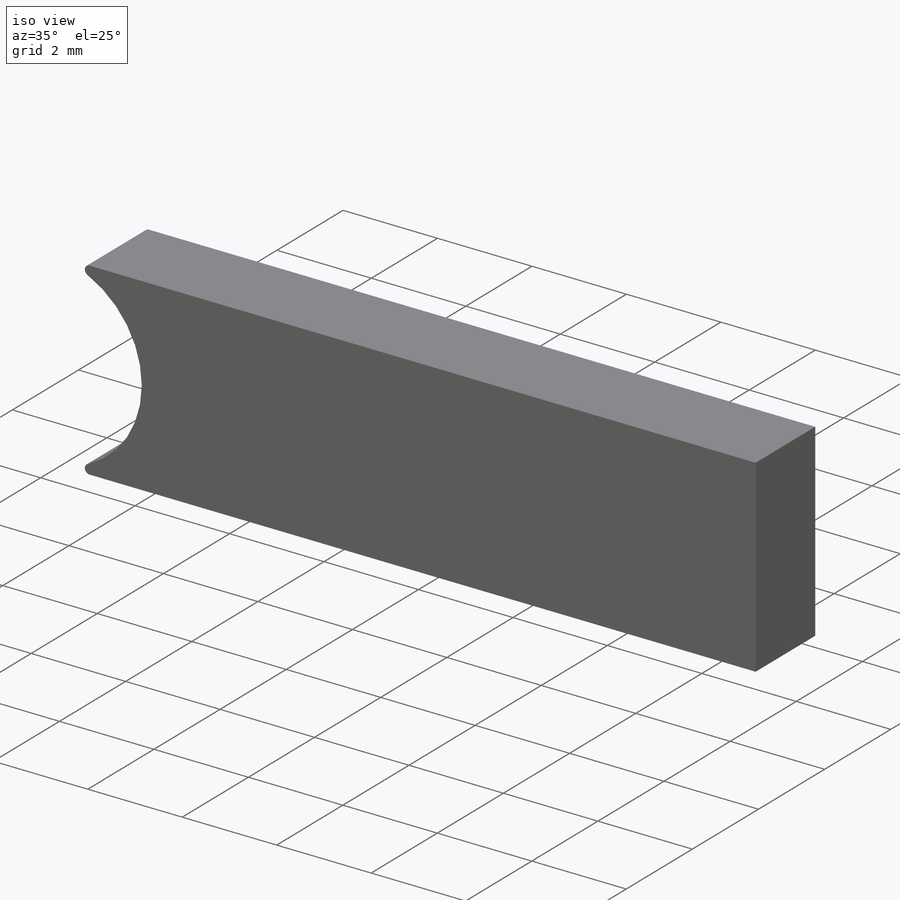
[diagram: iso view]
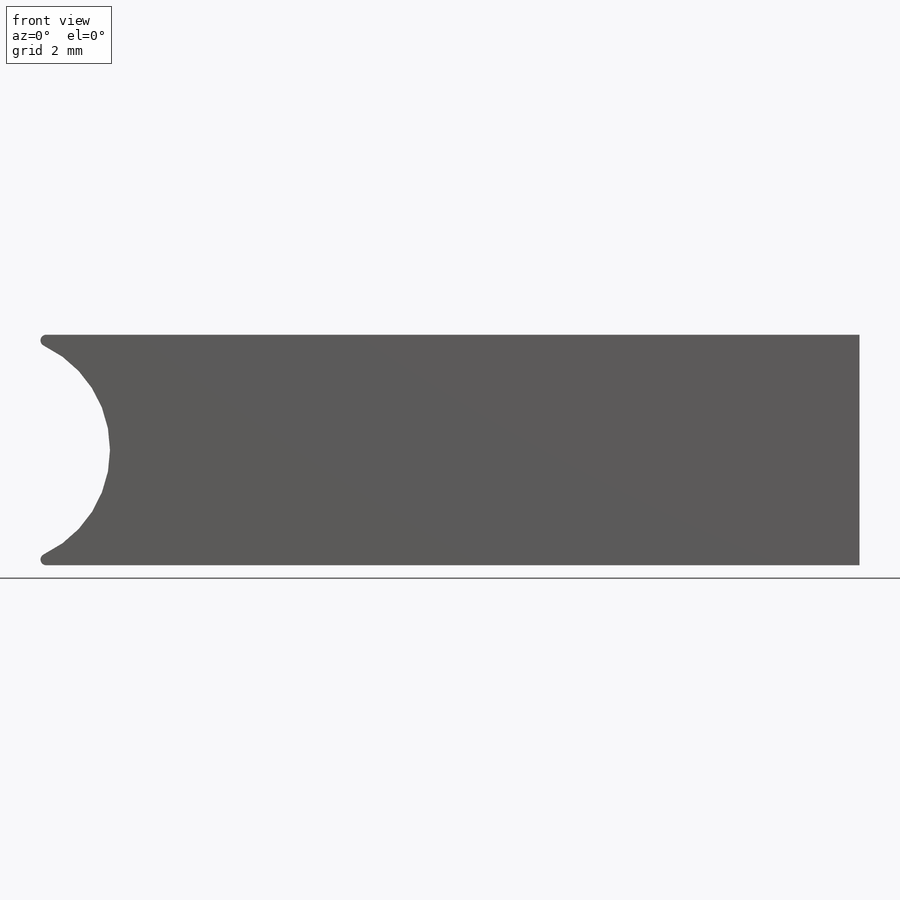
[diagram: front view]
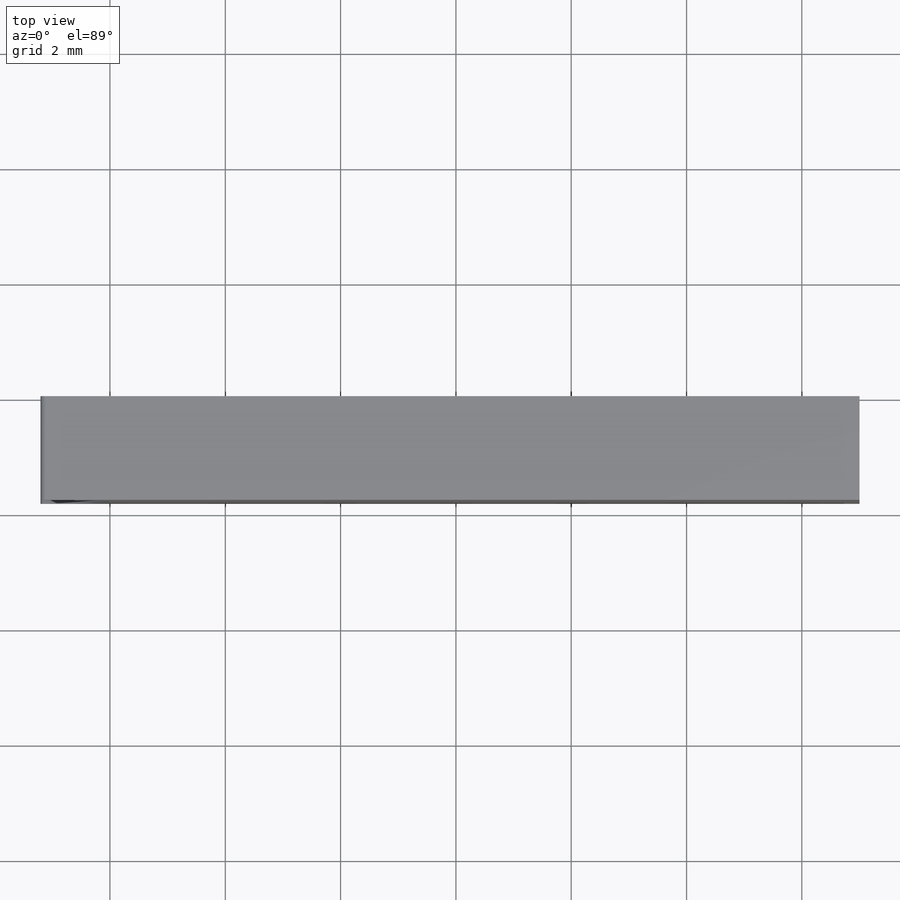
[diagram: top view]
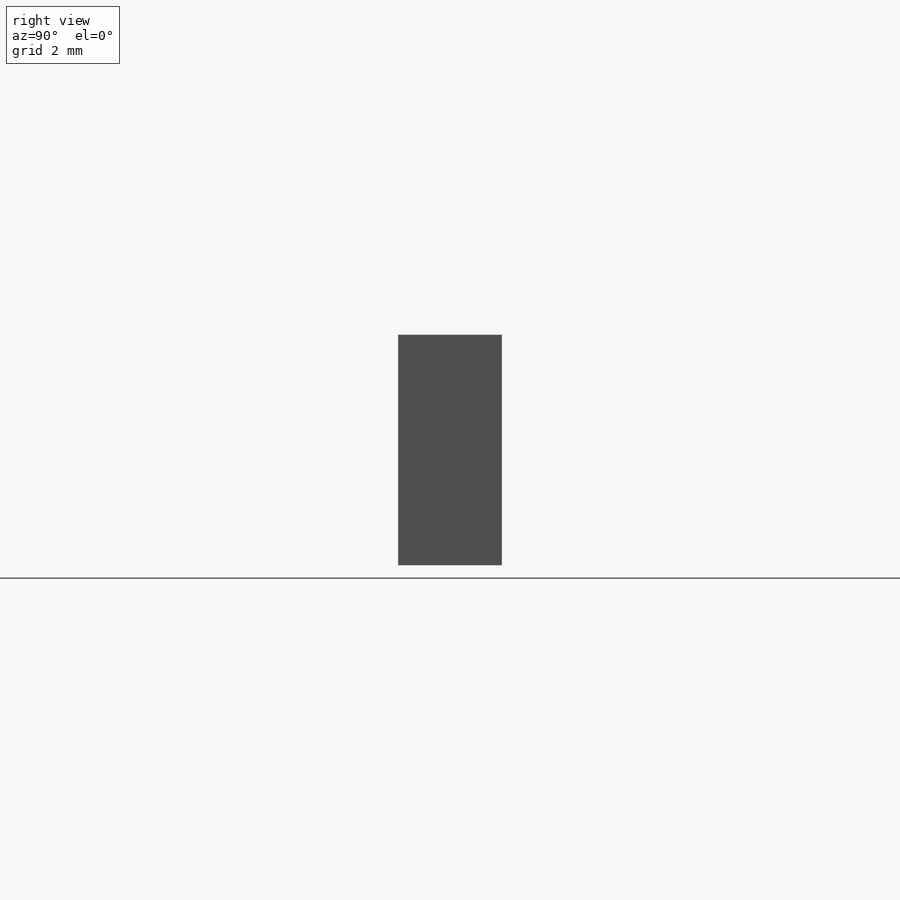
[diagram: right view]
SOLIDWORKS PART (.sldprt)
format: sldprt  version: not decoded by parser v0  size: 262,144 bytes
history: native  units: mm
features: sketch x2, fillet x2, material x1, extrude x1, cut_extrude x1, pattern_linear x1 (+13 scaffold rows collapsed)
feature tree (21):
  scaffold x13  (default folders/planes/origin — collapsed)
  material  "Material <not specified>"
  sketch  "Sketch1"  dims[D1=2.0mm D2=15.0mm]
  extrude  "Boss-Extrude1"  Depth=1.8mm
  fillet  "Fillet1"  Radius=0.1mm
  sketch  "Sketch2"  dims[D3=0.75mm D1=0.0mm D2=4.0mm]
  cut_extrude  "Cut-Extrude1"  Depth=0.75mm
  fillet  "Fillet2"  Radius=0.25mm
  pattern_linear  "LPattern1"  Count1=3 Count2=2 Spacing1=16mm Spacing2=6mm
decode coverage: 7 of 7 modeling features carry decoded parameters
note: suppression state not decoded; provenance and decode notes live in map.json
